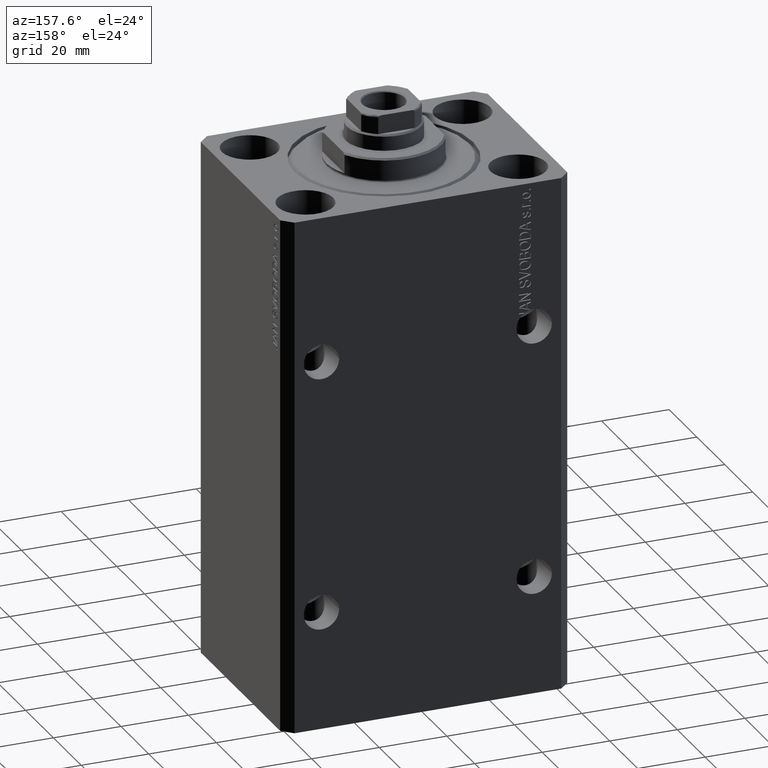
[diagram: clean part render]
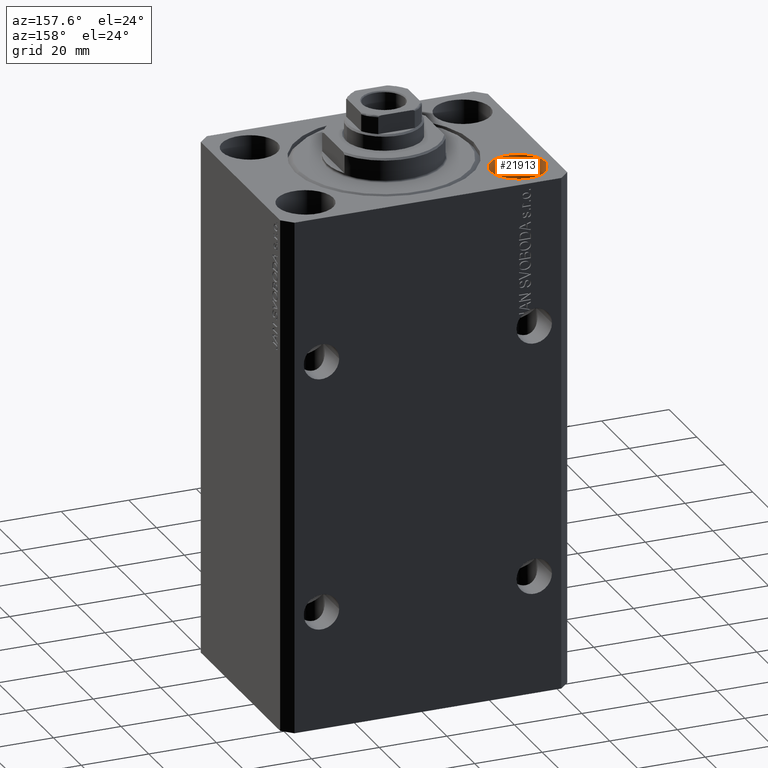
[diagram: same view with one face highlighted and labeled with its STEP entity id]
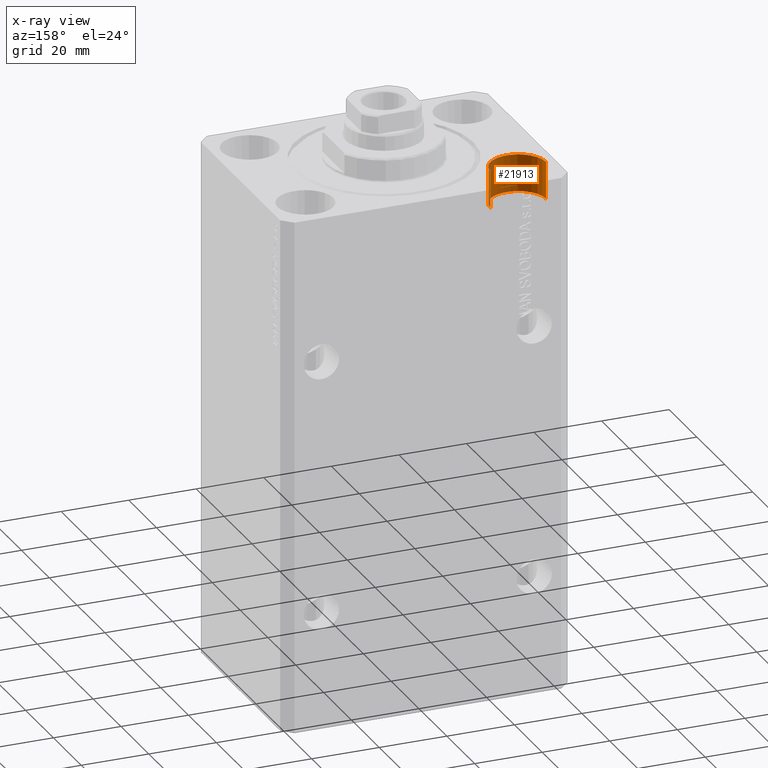
[diagram: x-ray of the same camera — body ghosted, the highlighted face saturated]
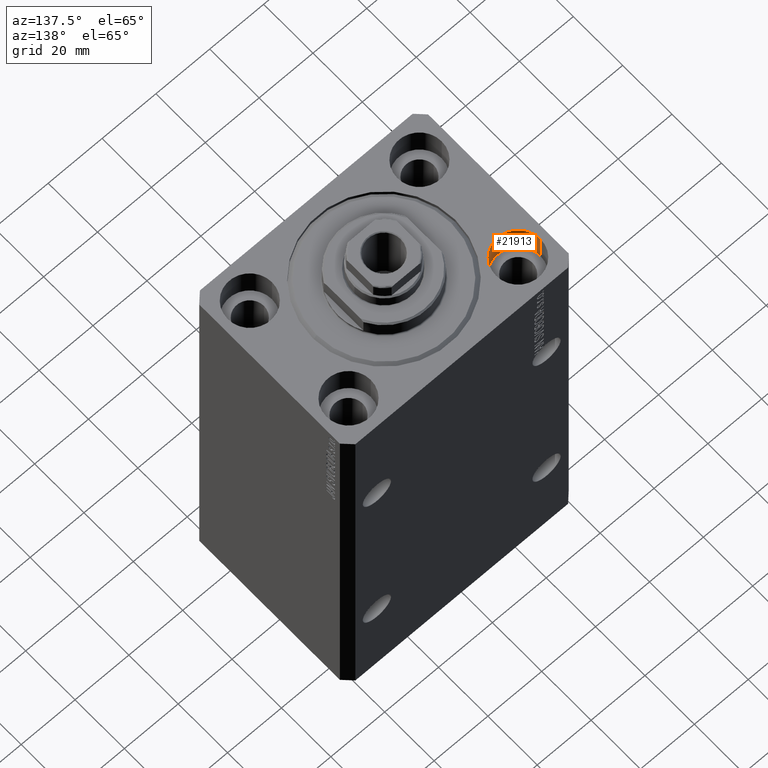
[diagram: same view with one face highlighted and labeled with its STEP entity id]
A machine part, auxiliary view. The second image highlights one B-rep face of the part: STEP entity #21913.
The next image is the same camera in x-ray: the body ghosted, the highlighted face saturated — about 6% of this face is hidden behind the body in this view.
A second angle (auxiliary view) of the same face is appended — the face is thin or edge-on in the first view.
In plain terms, the highlighted cylindrical surface (edge-blend (fillet) strip) has radius 8.25 mm, axis along (0, 0, 1).
Its self-contained STEP definition (entity closure, byte-faithful):
#480 = DIRECTION ( 'NONE',  ( 1.000000000000000000, 0.000000000000000000, 0.000000000000000000 ) ) ;
#803 = ORIENTED_EDGE ( 'NONE', *, *, #5575, .T. ) ;
#5575 = EDGE_CURVE ( 'NONE', #9651, #19313, #25238, .T. ) ;
#6159 = AXIS2_PLACEMENT_3D ( 'NONE', #28907, #42668, #480 ) ;
#7824 = DIRECTION ( 'NONE',  ( -0.000000000000000000, -0.000000000000000000, 1.000000000000000000 ) ) ;
#9474 = CARTESIAN_POINT ( 'NONE',  ( -31.50000000000000000, 20.00000000000000000, -11.00000000000000000 ) ) ;
#9651 = VERTEX_POINT ( 'NONE', #15002 ) ;
#10856 = CIRCLE ( 'NONE', #19668, 8.250000000000000000 ) ;
#11808 = VERTEX_POINT ( 'NONE', #21840 ) ;
#14543 = CARTESIAN_POINT ( 'NONE',  ( -23.25000000000000000, 20.00000000000000000, -11.00000000000000000 ) ) ;
#14667 = ORIENTED_EDGE ( 'NONE', *, *, #34775, .F. ) ;
#15002 = CARTESIAN_POINT ( 'NONE',  ( -39.75000000000000000, 20.00000000000000000, -11.00000000000000000 ) ) ;
#16478 = AXIS2_PLACEMENT_3D ( 'NONE', #28168, #24724, #27706 ) ;
#16870 = VECTOR ( 'NONE', #7824, 1000.000000000000000 ) ;
#17185 = FACE_OUTER_BOUND ( 'NONE', #31532, .T. ) ;
#19313 = VERTEX_POINT ( 'NONE', #20301 ) ;
#19668 = AXIS2_PLACEMENT_3D ( 'NONE', #9474, #41102, #33996 ) ;
#19844 = EDGE_CURVE ( 'NONE', #19313, #11808, #22277, .T. ) ;
#20301 = CARTESIAN_POINT ( 'NONE',  ( -39.75000000000000000, 20.00000000000000000, 0.000000000000000000 ) ) ;
#20881 = LINE ( 'NONE', #44486, #32848 ) ;
#21840 = CARTESIAN_POINT ( 'NONE',  ( -23.25000000000000000, 20.00000000000000000, 0.000000000000000000 ) ) ;
#21913 = ADVANCED_FACE ( 'NONE', ( #17185 ), #38261, .F. ) ;
#22277 = CIRCLE ( 'NONE', #6159, 8.250000000000000000 ) ;
#24072 = DIRECTION ( 'NONE',  ( -0.000000000000000000, -0.000000000000000000, 1.000000000000000000 ) ) ;
#24724 = DIRECTION ( 'NONE',  ( -0.000000000000000000, -0.000000000000000000, 1.000000000000000000 ) ) ;
#25238 = LINE ( 'NONE', #39220, #16870 ) ;
#27706 = DIRECTION ( 'NONE',  ( 1.000000000000000000, 0.000000000000000000, 0.000000000000000000 ) ) ;
#28168 = CARTESIAN_POINT ( 'NONE',  ( -31.50000000000000000, 20.00000000000000000, -11.00000000000000000 ) ) ;
#28907 = CARTESIAN_POINT ( 'NONE',  ( -31.50000000000000000, 20.00000000000000000, 0.000000000000000000 ) ) ;
#29138 = ORIENTED_EDGE ( 'NONE', *, *, #19844, .T. ) ;
#30387 = ORIENTED_EDGE ( 'NONE', *, *, #38404, .F. ) ;
#31532 = EDGE_LOOP ( 'NONE', ( #30387, #803, #29138, #14667 ) ) ;
#32848 = VECTOR ( 'NONE', #24072, 1000.000000000000000 ) ;
#33996 = DIRECTION ( 'NONE',  ( 1.000000000000000000, 0.000000000000000000, 0.000000000000000000 ) ) ;
#34775 = EDGE_CURVE ( 'NONE', #38168, #11808, #20881, .T. ) ;
#38168 = VERTEX_POINT ( 'NONE', #14543 ) ;
#38261 = CYLINDRICAL_SURFACE ( 'NONE', #16478, 8.250000000000000000 ) ;
#38404 = EDGE_CURVE ( 'NONE', #9651, #38168, #10856, .T. ) ;
#39220 = CARTESIAN_POINT ( 'NONE',  ( -39.75000000000000000, 20.00000000000000000, -11.00000000000000000 ) ) ;
#41102 = DIRECTION ( 'NONE',  ( 0.000000000000000000, 0.000000000000000000, 1.000000000000000000 ) ) ;
#42668 = DIRECTION ( 'NONE',  ( 0.000000000000000000, 0.000000000000000000, 1.000000000000000000 ) ) ;
#44486 = CARTESIAN_POINT ( 'NONE',  ( -23.25000000000000000, 20.00000000000000000, -11.00000000000000000 ) ) ;